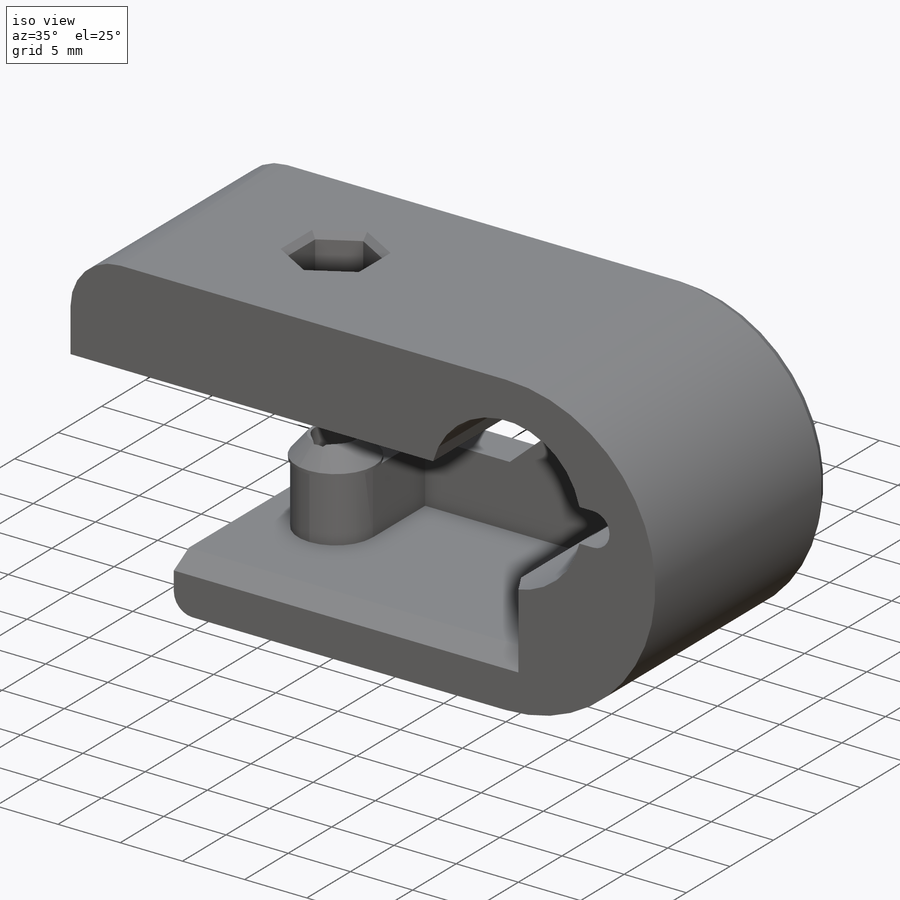
[diagram: iso view]
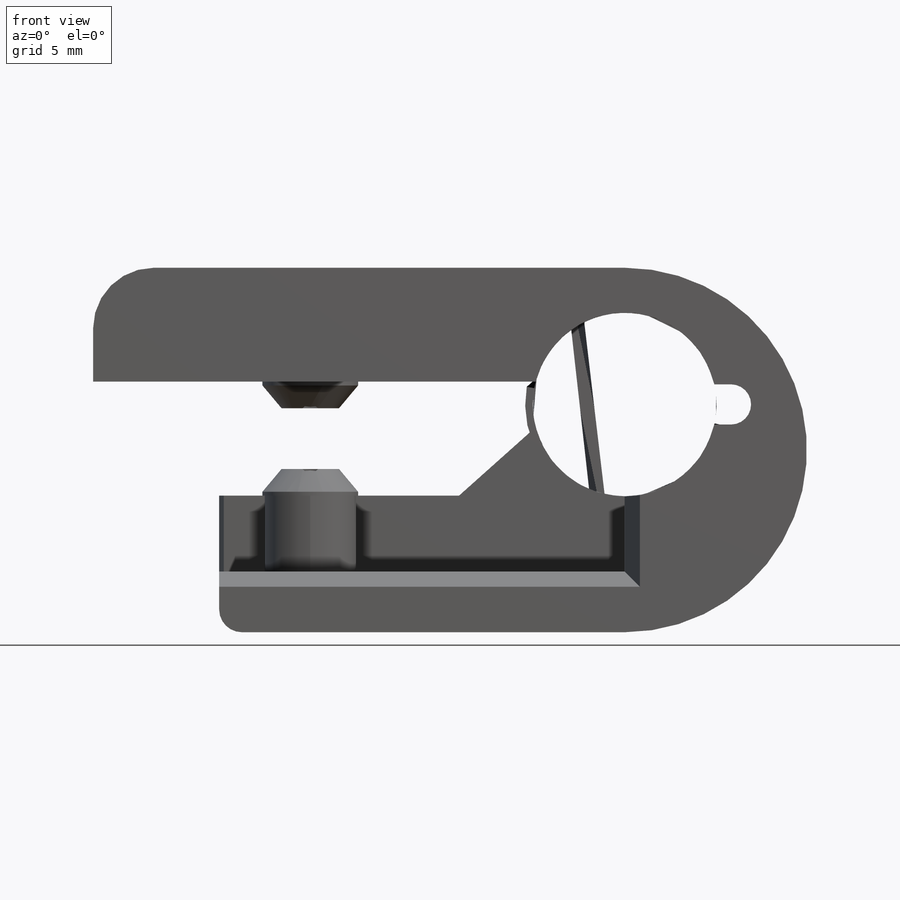
[diagram: front view]
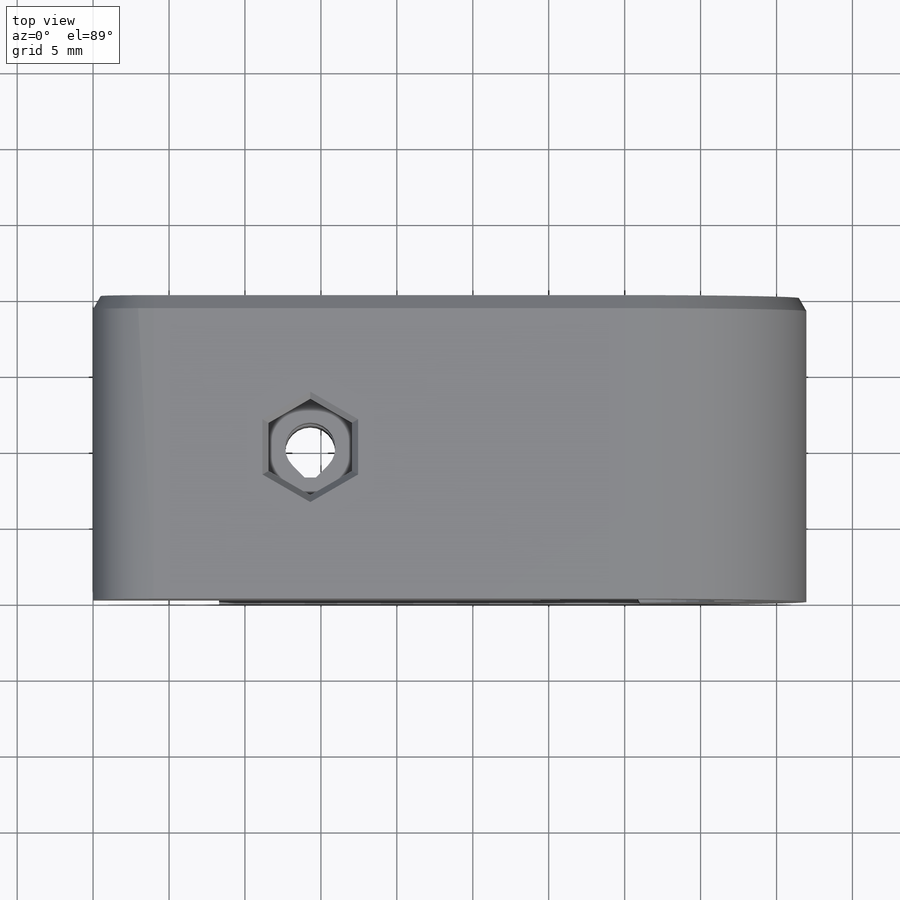
[diagram: top view]
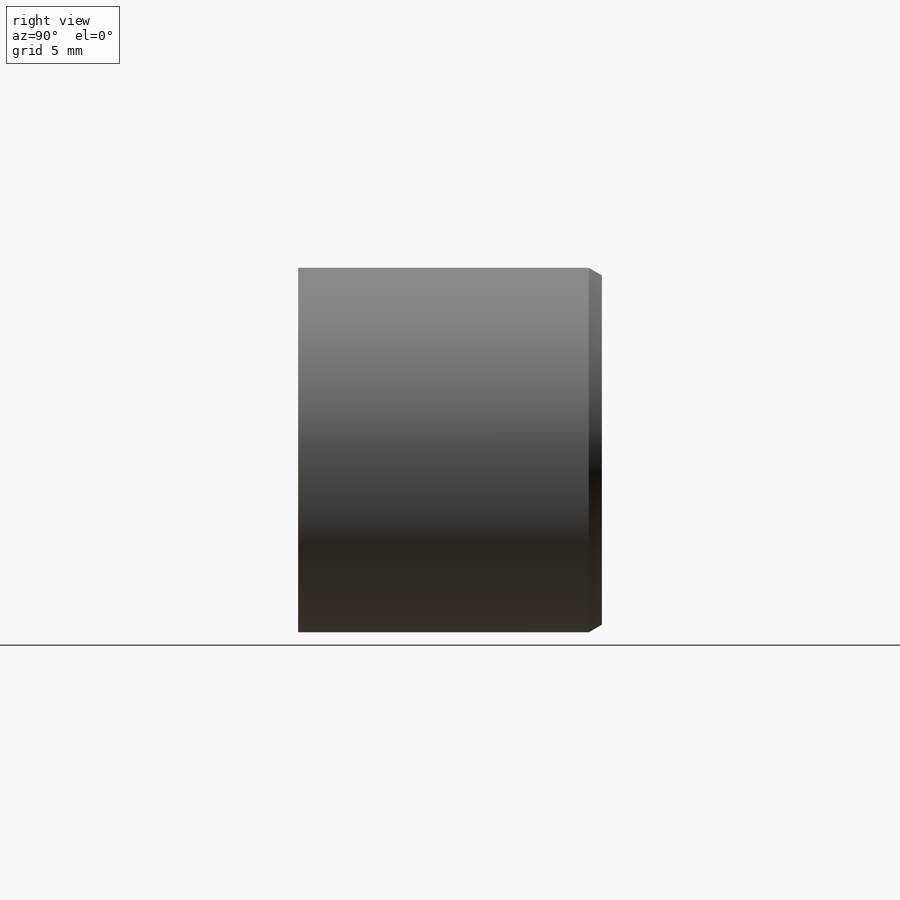
[diagram: right view]
SOLIDWORKS PART (.sldprt)
format: sldprt  version: not decoded by parser v0  size: 519,168 bytes
history: native  units: mm
features: sketch x10, chamfer x7, extrude x5, cut_extrude x5, fillet x3, material x1 (+13 scaffold rows collapsed)
feature tree (44):
  scaffold x13  (default folders/planes/origin — collapsed)
  material  "Custom Plastic"
  sketch  "Sketch1"  dims[c1.D1=12.1mm c1.D16=24.0mm c1.D12=12.0mm c2.D16=4.0mm c2.D2=10.0mm c2.D3=5.0mm c2.D4=7.1mm c2.D5=20.0mm c2.D6=4.0mm c2.D7=10.0mm c2.D8=1.75mm c2.D9=4.0mm c2.D10=10.9mm c2.D11=1.75mm c2.D12=10.0mm c2.D13=7.0mm c2.D14=35.0mm c2.D15=1.7mm c2.D17=3.0mm c3.D2=6.0mm c3.D17=31.0mm]
  extrude  "Boss-Extrude1"  Depth=20mm
  sketch  "Sketch2"  dims[c1.D1=10.0mm c1.D2=4.0mm c1.D3=3.0mm c1.D4=20.7mm c2.D2=4.0mm c2.D1=5.0mm c2.D5=3.0mm c2.D6=3.0mm]
  cut_extrude  "Cut-Extrude1"  Depth=4mm
  sketch  "Sketch3"
  cut_extrude  "Cut-Extrude2"  Depth=7mm
  fillet  "Fillet1"  Radius=3mm
  sketch  "Sketch4"  dims[D1=3.3mm]
  cut_extrude  "Cut-Extrude3"  [1 undecoded]
  sketch  "Sketch5"  dims[D1=5.5mm]
  cut_extrude  "Cut-Extrude4"  Depth=21mm
  fillet  "Fillet2"  Radius=12mm
  fillet  "Fillet3"  Radius=1.5mm
  sketch  "Sketch6"  dims[c1.D1=~6.377391mm c1.D2=5.1mm c1.D3=5.1mm c2.D1=1.5mm c2.D2=~3.387684mm c2.D3=3.0mm]
  extrude  "Boss-Extrude2"  Depth=1.75mm
  sketch  "Sketch7"  dims[c1.D1=~4.520638mm c1.D2=5.1mm c1.D3=5.1mm c2.D1=1.5mm c2.D3=3.0mm]
  extrude  "Boss-Extrude3"  Depth=1.75mm
  chamfer  "Chamfer1"  Distance=1.5mm Angle=40deg
  chamfer  "Chamfer2"  Distance=1.875mm Angle=45deg
  chamfer  "Chamfer3"  Distance=1mm Angle=60deg
  chamfer  "Chamfer4"  Distance=0.5mm Angle=60deg
  chamfer  "Chamfer6"  Distance=0.3mm
  sketch  "Sketch8"  dims[D1=10.2mm D2=2.0mm]
  extrude  "Boss-Extrude4"  Depth=0.5mm
  sketch  "Sketch9"
  extrude  "Boss-Extrude5"  Depth=0.5mm
  chamfer  "Chamfer7"  Distance=0.5mm Angle=70deg
  chamfer  "Chamfer8"  Distance=0.5mm
  sketch  "Sketch10"  dims[D1=0.32mm]
  cut_extrude  "Cut-Extrude5"  [1 undecoded]
decode coverage: 26 of 30 modeling features carry decoded parameters
note: ~ marks probable driven/reference dimensions
note: 2 parameter values undecoded
note: suppression state not decoded; provenance and decode notes live in map.json
